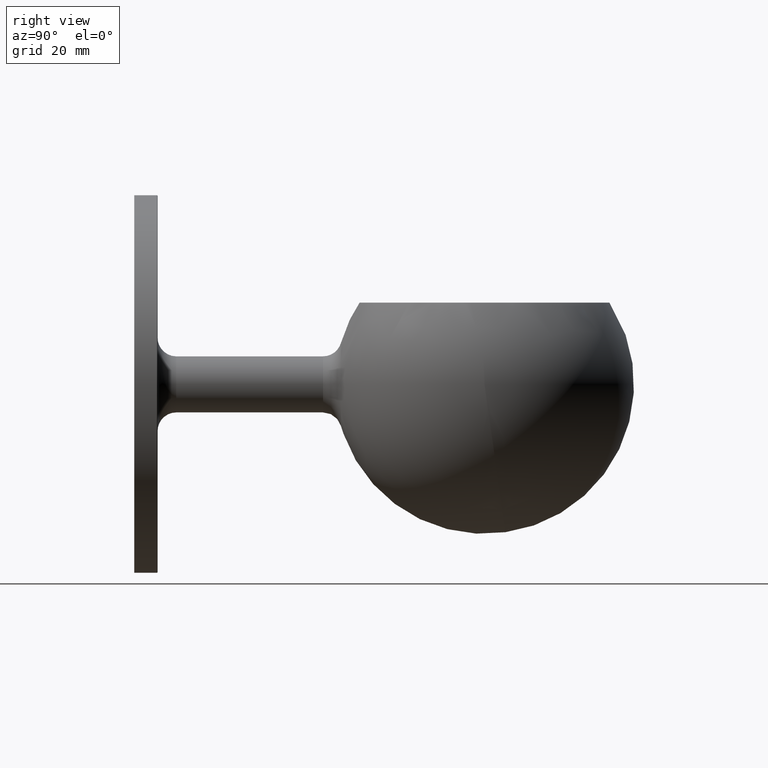
[diagram: clean part render]
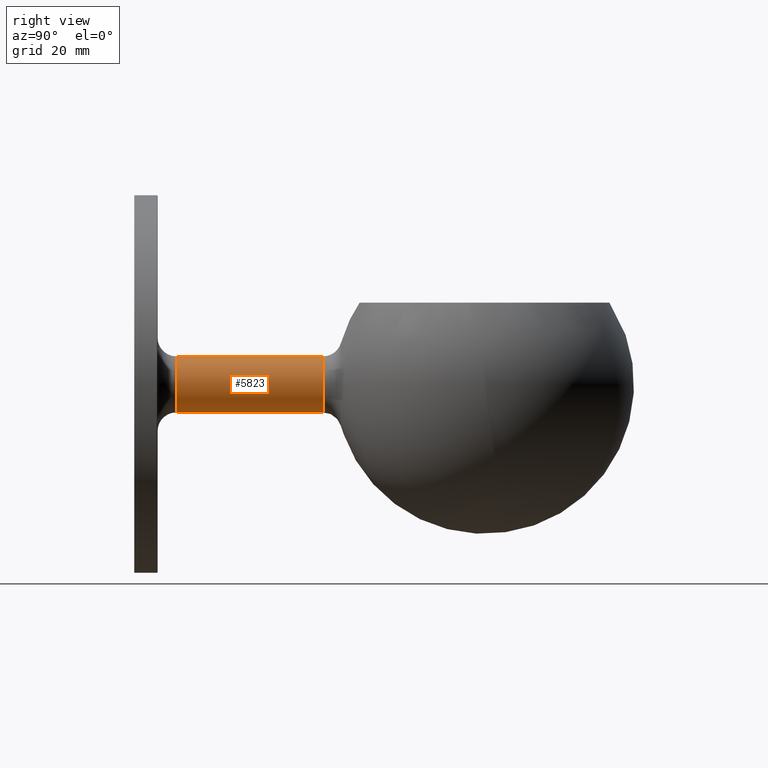
[diagram: same view with one face highlighted and labeled with its STEP entity id]
A machine part, right view. The second image highlights one B-rep face of the part: STEP entity #5823.
In plain terms, the highlighted cylindrical surface (bore or boss wall) has radius 6 mm, axis along (-0, -1, -0).
Its self-contained STEP definition (entity closure, byte-faithful):
#40 = EDGE_CURVE ( 'NONE', #9564, #9564, #7272, .T. ) ;
#827 = AXIS2_PLACEMENT_3D ( 'NONE', #7416, #8367, #1402 ) ;
#1013 = CARTESIAN_POINT ( 'NONE',  ( 0.000000000000000000, 40.41676706841883515, 0.000000000000000000 ) ) ;
#1087 = EDGE_LOOP ( 'NONE', ( #7839 ) ) ;
#1224 = DIRECTION ( 'NONE',  ( 0.000000000000000000, 0.000000000000000000, -1.000000000000000000 ) ) ;
#1395 = AXIS2_PLACEMENT_3D ( 'NONE', #1013, #2678, #8683 ) ;
#1402 = DIRECTION ( 'NONE',  ( 0.000000000000000000, 0.000000000000000000, 1.000000000000000000 ) ) ;
#2678 = DIRECTION ( 'NONE',  ( -0.000000000000000000, -1.000000000000000000, -0.000000000000000000 ) ) ;
#3689 = VERTEX_POINT ( 'NONE', #8685 ) ;
#4032 = EDGE_LOOP ( 'NONE', ( #9818 ) ) ;
#4686 = AXIS2_PLACEMENT_3D ( 'NONE', #5519, #10689, #1224 ) ;
#5269 = CARTESIAN_POINT ( 'NONE',  ( 0.000000000000000000, 8.999999999999994671, 6.000000000000000888 ) ) ;
#5291 = FACE_OUTER_BOUND ( 'NONE', #1087, .T. ) ;
#5519 = CARTESIAN_POINT ( 'NONE',  ( 0.000000000000000000, 107.0010000000000048, 0.000000000000000000 ) ) ;
#5823 = ADVANCED_FACE ( 'NONE', ( #5291, #7029 ), #6762, .T. ) ;
#6762 = CYLINDRICAL_SURFACE ( 'NONE', #4686, 6.000000000000000888 ) ;
#7029 = FACE_OUTER_BOUND ( 'NONE', #4032, .T. ) ;
#7272 = CIRCLE ( 'NONE', #827, 6.000000000000000888 ) ;
#7416 = CARTESIAN_POINT ( 'NONE',  ( 0.000000000000000000, 8.999999999999994671, 0.000000000000000000 ) ) ;
#7839 = ORIENTED_EDGE ( 'NONE', *, *, #10764, .T. ) ;
#8367 = DIRECTION ( 'NONE',  ( 0.000000000000000000, 1.000000000000000000, 0.000000000000000000 ) ) ;
#8683 = DIRECTION ( 'NONE',  ( 0.000000000000000000, 0.000000000000000000, 1.000000000000000000 ) ) ;
#8685 = CARTESIAN_POINT ( 'NONE',  ( 0.000000000000000000, 40.41676706841883515, 6.000000000000000888 ) ) ;
#9564 = VERTEX_POINT ( 'NONE', #5269 ) ;
#9818 = ORIENTED_EDGE ( 'NONE', *, *, #40, .T. ) ;
#10689 = DIRECTION ( 'NONE',  ( -0.000000000000000000, -1.000000000000000000, -0.000000000000000000 ) ) ;
#10764 = EDGE_CURVE ( 'NONE', #3689, #3689, #10798, .T. ) ;
#10798 = CIRCLE ( 'NONE', #1395, 6.000000000000000888 ) ;